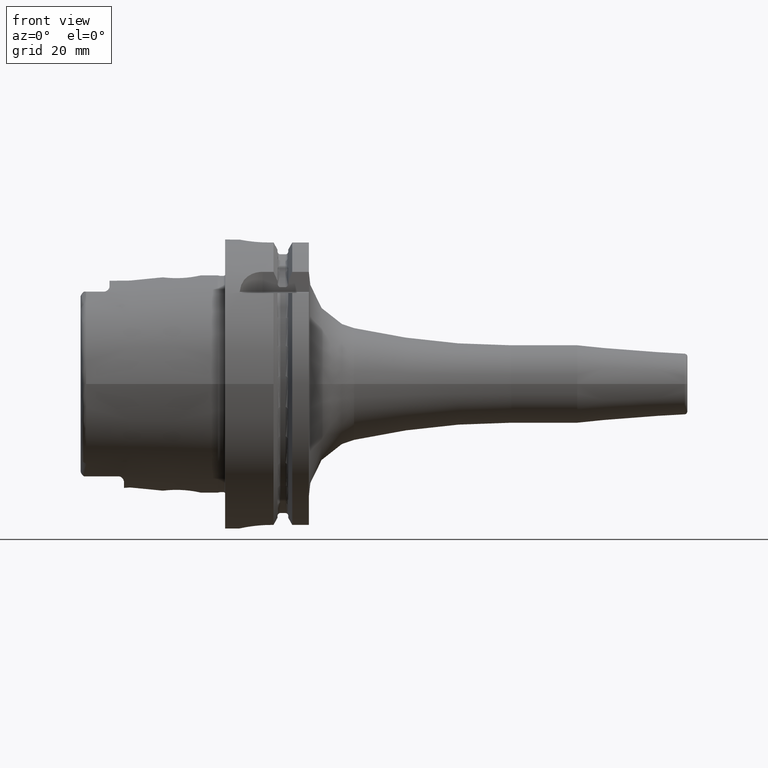
[diagram: clean part render]
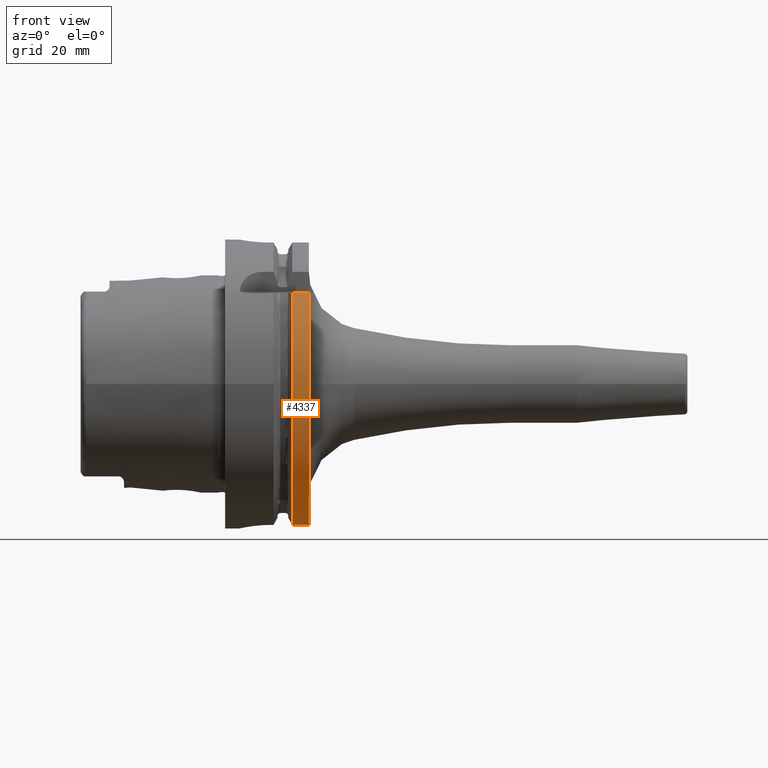
[diagram: same view with one face highlighted and labeled with its STEP entity id]
A machine part, front view. The second image highlights one B-rep face of the part: STEP entity #4337.
In plain terms, the highlighted cylindrical surface (partial cylindrical patch) has radius 50 mm, axis along (1, 0, 0).
Its self-contained STEP definition (entity closure, byte-faithful):
#1123=DIRECTION('',(1.E0,0.E0,0.E0));
#1124=VECTOR('',#1123,5.752404735808E0);
#1125=CARTESIAN_POINT('',(2.324759526419E1,-3.882975663071E1,3.15E1));
#1126=LINE('',#1125,#1124);
#1127=CARTESIAN_POINT('',(2.9E1,0.E0,0.E0));
#1128=DIRECTION('',(1.E0,0.E0,0.E0));
#1129=DIRECTION('',(0.E0,-7.765951326142E-1,6.3E-1));
#1130=AXIS2_PLACEMENT_3D('',#1127,#1128,#1129);
#1132=DIRECTION('',(1.E0,0.E0,0.E0));
#1133=VECTOR('',#1132,5.752404735808E0);
#1134=CARTESIAN_POINT('',(2.324759526419E1,-1.1E1,-4.877499359303E1));
#1135=LINE('',#1134,#1133);
#1677=CARTESIAN_POINT('',(2.324759526419E1,0.E0,0.E0));
#1678=DIRECTION('',(1.E0,0.E0,0.E0));
#1679=DIRECTION('',(0.E0,-7.765951326142E-1,6.3E-1));
#1680=AXIS2_PLACEMENT_3D('',#1677,#1678,#1679);
#3026=CARTESIAN_POINT('',(2.324759526419E1,-1.1E1,-4.877499359303E1));
#3027=CARTESIAN_POINT('',(2.9E1,-1.1E1,-4.877499359303E1));
#3028=VERTEX_POINT('',#3026);
#3029=VERTEX_POINT('',#3027);
#3076=CARTESIAN_POINT('',(2.324759526419E1,-3.882975663071E1,3.15E1));
#3077=CARTESIAN_POINT('',(2.9E1,-3.882975663071E1,3.15E1));
#3078=VERTEX_POINT('',#3076);
#3079=VERTEX_POINT('',#3077);
#4324=CARTESIAN_POINT('',(-5.395E1,0.E0,0.E0));
#4325=DIRECTION('',(1.E0,0.E0,0.E0));
#4326=DIRECTION('',(0.E0,-1.E0,0.E0));
#4327=AXIS2_PLACEMENT_3D('',#4324,#4325,#4326);
#4328=CYLINDRICAL_SURFACE('',#4327,5.E1);
#4329=ORIENTED_EDGE('',*,*,#4288,.T.);
#4330=ORIENTED_EDGE('',*,*,#4270,.T.);
#4332=ORIENTED_EDGE('',*,*,#4331,.F.);
#4334=ORIENTED_EDGE('',*,*,#4333,.F.);
#4335=EDGE_LOOP('',(#4329,#4330,#4332,#4334));
#4336=FACE_OUTER_BOUND('',#4335,.F.);
#4337=ADVANCED_FACE('',(#4336),#4328,.T.);
#1131=CIRCLE('',#1130,5.E1);
#1681=CIRCLE('',#1680,5.E1);
#4270=EDGE_CURVE('',#3079,#3029,#1131,.T.);
#4288=EDGE_CURVE('',#3078,#3079,#1126,.T.);
#4331=EDGE_CURVE('',#3028,#3029,#1135,.T.);
#4333=EDGE_CURVE('',#3078,#3028,#1681,.T.);